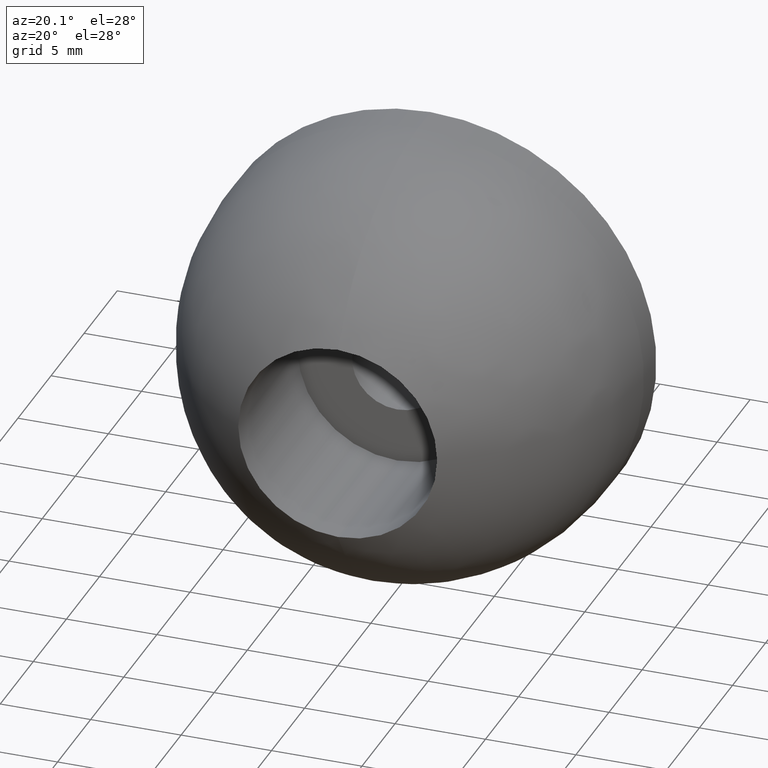
[diagram: clean part render]
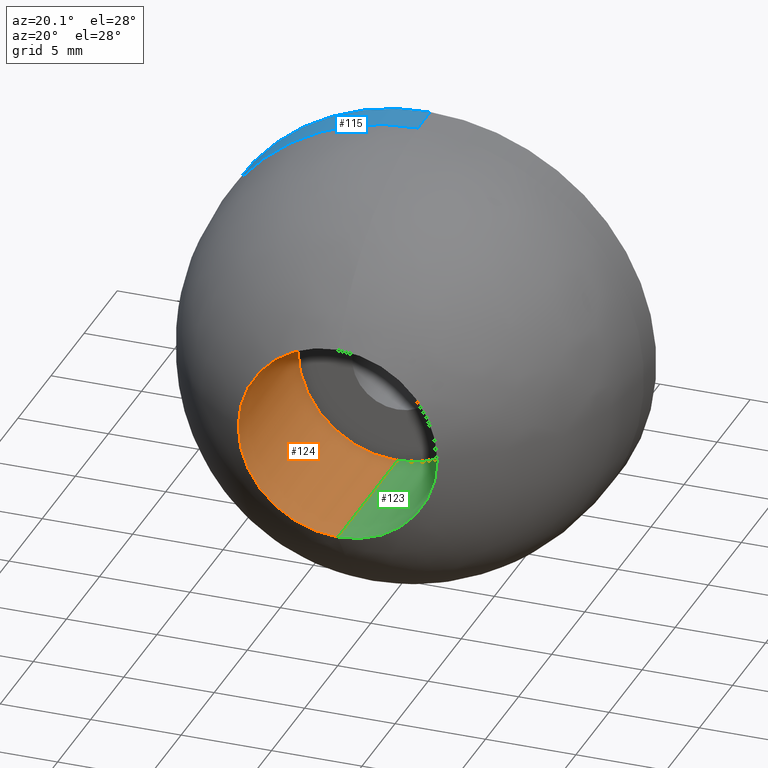
[diagram: same view with three faces highlighted in distinct colors, each labeled with its STEP entity id]
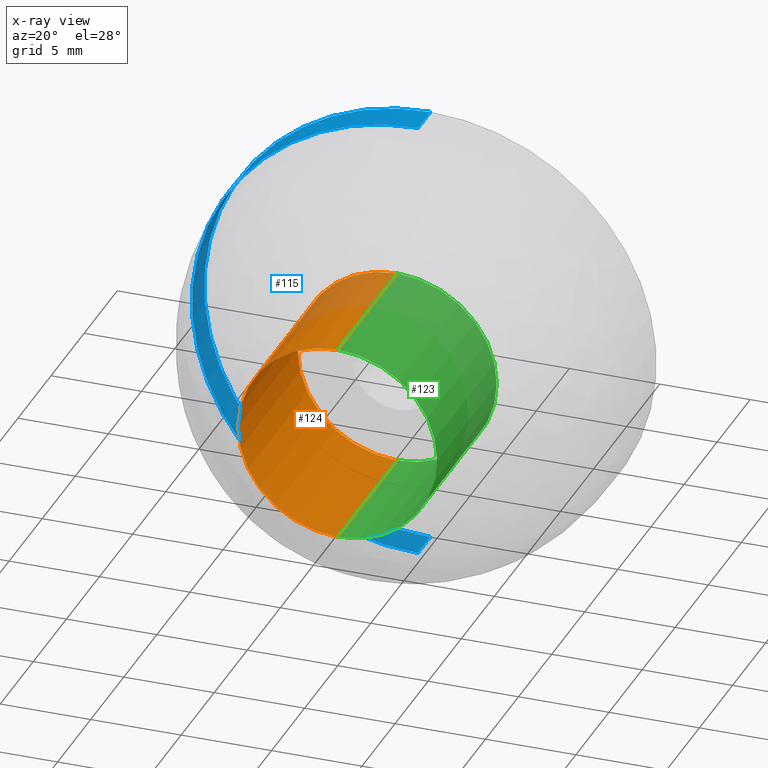
[diagram: x-ray of the same camera — body ghosted, the three highlighted faces saturated]
A machine part, auxiliary view with three faces highlighted in distinct colors.
The next image is the same camera in x-ray (body ghosted, the three faces saturated) — at least one of them is partly hidden behind the body in this view.
Their STEP definitions:

[orange] entity #124 — the highlighted cylindrical surface (partial cylindrical patch) has radius 5.5 mm, axis along (0, -1, 0).
#124=ADVANCED_FACE('',(#255),#254,.F.);
#254=CYLINDRICAL_SURFACE('',#414,5.50000000000E+000);
#255=FACE_OUTER_BOUND('',#415,.T.);
#411=CARTESIAN_POINT('',(0.00000000000E+000,4.50000000000E+000,0.00000000000E+000));
#412=DIRECTION('',(0.00000000000E+000,-1.00000000000E+000,-0.00000000000E+000));
#413=DIRECTION('',(-0.00000000000E+000,0.00000000000E+000,-1.00000000000E+000));
#414=AXIS2_PLACEMENT_3D('',#411,#412,#413);
#415=EDGE_LOOP('',(#496,#497,#498,#499));
#496=ORIENTED_EDGE('',*,*,#543,.T.);
#497=ORIENTED_EDGE('',*,*,#548,.F.);
#498=ORIENTED_EDGE('',*,*,#530,.F.);
#499=ORIENTED_EDGE('',*,*,#549,.T.);
#530=EDGE_CURVE('',#604,#605,#606,.T.);
#543=EDGE_CURVE('',#673,#672,#692,.T.);
#548=EDGE_CURVE('',#605,#672,#722,.T.);
#549=EDGE_CURVE('',#604,#673,#728,.T.);
#604=VERTEX_POINT('',#844);
#605=VERTEX_POINT('',#845);
#606=CIRCLE('',#849,5.50000000000E+000);
#672=VERTEX_POINT('',#888);
#673=VERTEX_POINT('',#889);
#692=CIRCLE('',#903,5.50000000000E+000);
#722=(BOUNDED_CURVE() B_SPLINE_CURVE(1,(#912,#913),.UNSPECIFIED.,.F.,.F.) B_SPLINE_CURVE_WITH_KNOTS((2,2),(8.33333343261E-002,9.16666664274E-001),.UNSPECIFIED.) CURVE() GEOMETRIC_REPRESENTATION_ITEM() RATIONAL_B_SPLINE_CURVE((1.00000000000E+000,1.00000000000E+000)) REPRESENTATION_ITEM('') );
#728=(BOUNDED_CURVE() B_SPLINE_CURVE(1,(#914,#915),.UNSPECIFIED.,.F.,.F.) B_SPLINE_CURVE_WITH_KNOTS((2,2),(8.33333333333E-002,9.16666666667E-001),.UNSPECIFIED.) CURVE() GEOMETRIC_REPRESENTATION_ITEM() RATIONAL_B_SPLINE_CURVE((7.50000000000E-001,7.50000000000E-001)) REPRESENTATION_ITEM('') );
#844=CARTESIAN_POINT('',(6.73533494602E-016,9.00000000000E+000,5.50000000000E+000));
#845=CARTESIAN_POINT('',(0.00000000000E+000,9.00000000000E+000,-5.50000000000E+000));
#846=CARTESIAN_POINT('',(0.00000000000E+000,9.00000000000E+000,0.00000000000E+000));
#847=DIRECTION('',(0.00000000000E+000,-1.00000000000E+000,0.00000000000E+000));
#848=DIRECTION('',(-0.00000000000E+000,-0.00000000000E+000,1.00000000000E+000));
#849=AXIS2_PLACEMENT_3D('',#846,#847,#848);
#888=CARTESIAN_POINT('',(0.00000000000E+000,5.15143483426E-014,-5.50000000000E+000));
#889=CARTESIAN_POINT('',(6.73533494602E-016,5.15143483426E-014,5.50000000000E+000));
#900=CARTESIAN_POINT('',(0.00000000000E+000,5.15143483426E-014,0.00000000000E+000));
#901=DIRECTION('',(0.00000000000E+000,-1.00000000000E+000,0.00000000000E+000));
#902=DIRECTION('',(-0.00000000000E+000,-0.00000000000E+000,1.00000000000E+000));
#903=AXIS2_PLACEMENT_3D('',#900,#901,#902);
#912=CARTESIAN_POINT('',(0.00000000000E+000,8.99999998928E+000,-5.50000000000E+000));
#913=CARTESIAN_POINT('',(0.00000000000E+000,2.58405780107E-008,-5.50000000000E+000));
#914=CARTESIAN_POINT('',(0.00000000000E+000,9.00000000000E+000,5.50000000000E+000));
#915=CARTESIAN_POINT('',(0.00000000000E+000,5.15143483426E-014,5.50000000000E+000));

[blue] entity #115 — the highlighted cylindrical surface (partial cylindrical patch) has radius 12.5 mm, axis along (0, -1, 0).
#115=ADVANCED_FACE('',(#165),#164,.T.);
#164=CYLINDRICAL_SURFACE('',#347,1.25000000000E+001);
#165=FACE_OUTER_BOUND('',#348,.T.);
#344=CARTESIAN_POINT('',(0.00000000000E+000,1.30621776581E+001,0.00000000000E+000));
#345=DIRECTION('',(0.00000000000E+000,-1.00000000000E+000,-0.00000000000E+000));
#346=DIRECTION('',(1.22464679915E-016,0.00000000000E+000,1.00000000000E+000));
#347=AXIS2_PLACEMENT_3D('',#344,#345,#346);
#348=EDGE_LOOP('',(#460,#461,#462,#463));
#460=ORIENTED_EDGE('',*,*,#536,.F.);
#461=ORIENTED_EDGE('',*,*,#537,.F.);
#462=ORIENTED_EDGE('',*,*,#532,.T.);
#463=ORIENTED_EDGE('',*,*,#538,.T.);
#532=EDGE_CURVE('',#618,#619,#620,.T.);
#536=EDGE_CURVE('',#646,#647,#648,.T.);
#537=EDGE_CURVE('',#618,#646,#654,.T.);
#538=EDGE_CURVE('',#619,#647,#660,.T.);
#618=VERTEX_POINT('',#854);
#619=VERTEX_POINT('',#855);
#620=CIRCLE('',#859,1.25000000000E+001);
#646=VERTEX_POINT('',#874);
#647=VERTEX_POINT('',#875);
#648=CIRCLE('',#879,1.25000000000E+001);
#654=(BOUNDED_CURVE() B_SPLINE_CURVE(1,(#880,#881),.UNSPECIFIED.,.F.,.F.) B_SPLINE_CURVE_WITH_KNOTS((2,2),(8.33333134656E-002,9.16666653270E-001),.UNSPECIFIED.) CURVE() GEOMETRIC_REPRESENTATION_ITEM() RATIONAL_B_SPLINE_CURVE((1.00000000000E+000,1.00000000000E+000)) REPRESENTATION_ITEM('') );
#660=(BOUNDED_CURVE() B_SPLINE_CURVE(1,(#882,#883),.UNSPECIFIED.,.F.,.F.) B_SPLINE_CURVE_WITH_KNOTS((2,2),(8.33333333333E-002,9.16666666667E-001),.UNSPECIFIED.) CURVE() GEOMETRIC_REPRESENTATION_ITEM() RATIONAL_B_SPLINE_CURVE((7.50000000000E-001,7.50000000000E-001)) REPRESENTATION_ITEM('') );
#854=CARTESIAN_POINT('',(-1.18423789293E-015,1.40000000000E+001,1.25000000000E+001));
#855=CARTESIAN_POINT('',(-9.38638995811E-016,1.40000000000E+001,-1.25000000000E+001));
#856=CARTESIAN_POINT('',(0.00000000000E+000,1.40000000000E+001,0.00000000000E+000));
#857=DIRECTION('',(0.00000000000E+000,-1.00000000000E+000,0.00000000000E+000));
#858=DIRECTION('',(4.73695157174E-017,-0.00000000000E+000,-1.00000000000E+000));
#859=AXIS2_PLACEMENT_3D('',#856,#857,#858);
#874=CARTESIAN_POINT('',(1.53075794228E-015,1.21243556530E+001,1.25000000000E+001));
#875=CARTESIAN_POINT('',(5.92118946467E-016,1.21243556530E+001,-1.25000000000E+001));
#876=CARTESIAN_POINT('',(0.00000000000E+000,1.21243556530E+001,0.00000000000E+000));
#877=DIRECTION('',(0.00000000000E+000,-1.00000000000E+000,0.00000000000E+000));
#878=DIRECTION('',(-0.00000000000E+000,-0.00000000000E+000,1.00000000000E+000));
#879=AXIS2_PLACEMENT_3D('',#876,#877,#878);
#880=CARTESIAN_POINT('',(1.53080849893E-015,1.40000000447E+001,1.25000000000E+001));
#881=CARTESIAN_POINT('',(1.53080849893E-015,1.21243556832E+001,1.25000000000E+001));
#882=CARTESIAN_POINT('',(-5.92118946467E-016,1.40000000000E+001,-1.25000000000E+001));
#883=CARTESIAN_POINT('',(-5.92118946467E-016,1.21243556530E+001,-1.25000000000E+001));

[green] entity #123 — the highlighted cylindrical surface (partial cylindrical patch) has radius 5.5 mm, axis along (0, -1, 0).
#123=ADVANCED_FACE('',(#245),#244,.F.);
#244=CYLINDRICAL_SURFACE('',#409,5.50000000000E+000);
#245=FACE_OUTER_BOUND('',#410,.T.);
#406=CARTESIAN_POINT('',(0.00000000000E+000,4.50000000000E+000,0.00000000000E+000));
#407=DIRECTION('',(0.00000000000E+000,-1.00000000000E+000,-0.00000000000E+000));
#408=DIRECTION('',(-0.00000000000E+000,0.00000000000E+000,-1.00000000000E+000));
#409=AXIS2_PLACEMENT_3D('',#406,#407,#408);
#410=EDGE_LOOP('',(#492,#493,#494,#495));
#492=ORIENTED_EDGE('',*,*,#531,.F.);
#493=ORIENTED_EDGE('',*,*,#548,.T.);
#494=ORIENTED_EDGE('',*,*,#540,.T.);
#495=ORIENTED_EDGE('',*,*,#549,.F.);
#531=EDGE_CURVE('',#605,#604,#612,.T.);
#540=EDGE_CURVE('',#672,#673,#674,.T.);
#548=EDGE_CURVE('',#605,#672,#722,.T.);
#549=EDGE_CURVE('',#604,#673,#728,.T.);
#604=VERTEX_POINT('',#844);
#605=VERTEX_POINT('',#845);
#612=CIRCLE('',#853,5.50000000000E+000);
#672=VERTEX_POINT('',#888);
#673=VERTEX_POINT('',#889);
#674=CIRCLE('',#893,5.50000000000E+000);
#722=(BOUNDED_CURVE() B_SPLINE_CURVE(1,(#912,#913),.UNSPECIFIED.,.F.,.F.) B_SPLINE_CURVE_WITH_KNOTS((2,2),(8.33333343261E-002,9.16666664274E-001),.UNSPECIFIED.) CURVE() GEOMETRIC_REPRESENTATION_ITEM() RATIONAL_B_SPLINE_CURVE((1.00000000000E+000,1.00000000000E+000)) REPRESENTATION_ITEM('') );
#728=(BOUNDED_CURVE() B_SPLINE_CURVE(1,(#914,#915),.UNSPECIFIED.,.F.,.F.) B_SPLINE_CURVE_WITH_KNOTS((2,2),(8.33333333333E-002,9.16666666667E-001),.UNSPECIFIED.) CURVE() GEOMETRIC_REPRESENTATION_ITEM() RATIONAL_B_SPLINE_CURVE((7.50000000000E-001,7.50000000000E-001)) REPRESENTATION_ITEM('') );
#844=CARTESIAN_POINT('',(6.73533494602E-016,9.00000000000E+000,5.50000000000E+000));
#845=CARTESIAN_POINT('',(0.00000000000E+000,9.00000000000E+000,-5.50000000000E+000));
#850=CARTESIAN_POINT('',(0.00000000000E+000,9.00000000000E+000,0.00000000000E+000));
#851=DIRECTION('',(0.00000000000E+000,-1.00000000000E+000,0.00000000000E+000));
#852=DIRECTION('',(-0.00000000000E+000,-0.00000000000E+000,1.00000000000E+000));
#853=AXIS2_PLACEMENT_3D('',#850,#851,#852);
#888=CARTESIAN_POINT('',(0.00000000000E+000,5.15143483426E-014,-5.50000000000E+000));
#889=CARTESIAN_POINT('',(6.73533494602E-016,5.15143483426E-014,5.50000000000E+000));
#890=CARTESIAN_POINT('',(0.00000000000E+000,5.15143483426E-014,0.00000000000E+000));
#891=DIRECTION('',(0.00000000000E+000,-1.00000000000E+000,0.00000000000E+000));
#892=DIRECTION('',(-0.00000000000E+000,-0.00000000000E+000,1.00000000000E+000));
#893=AXIS2_PLACEMENT_3D('',#890,#891,#892);
#912=CARTESIAN_POINT('',(0.00000000000E+000,8.99999998928E+000,-5.50000000000E+000));
#913=CARTESIAN_POINT('',(0.00000000000E+000,2.58405780107E-008,-5.50000000000E+000));
#914=CARTESIAN_POINT('',(0.00000000000E+000,9.00000000000E+000,5.50000000000E+000));
#915=CARTESIAN_POINT('',(0.00000000000E+000,5.15143483426E-014,5.50000000000E+000));